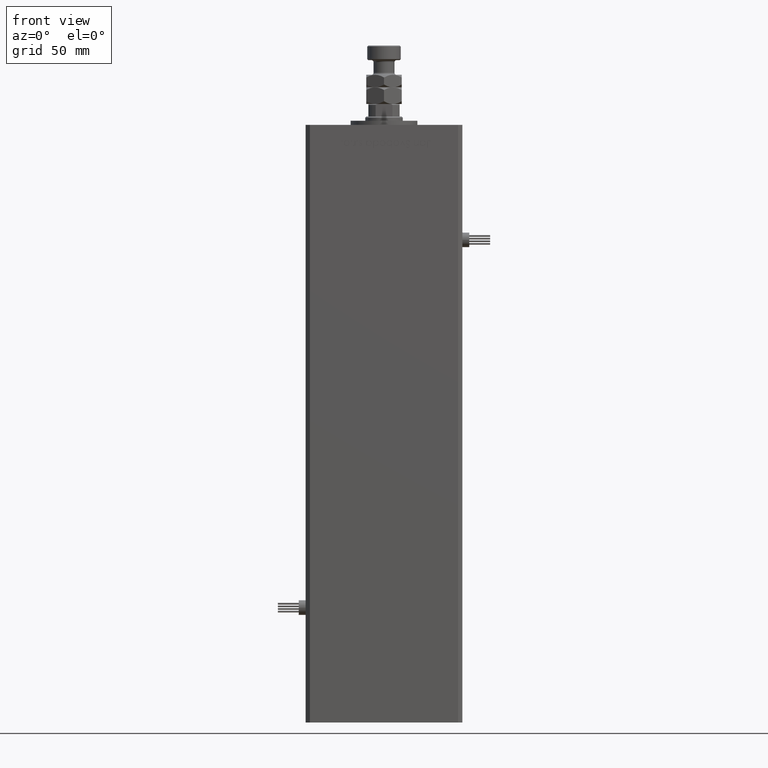
[diagram: clean part render]
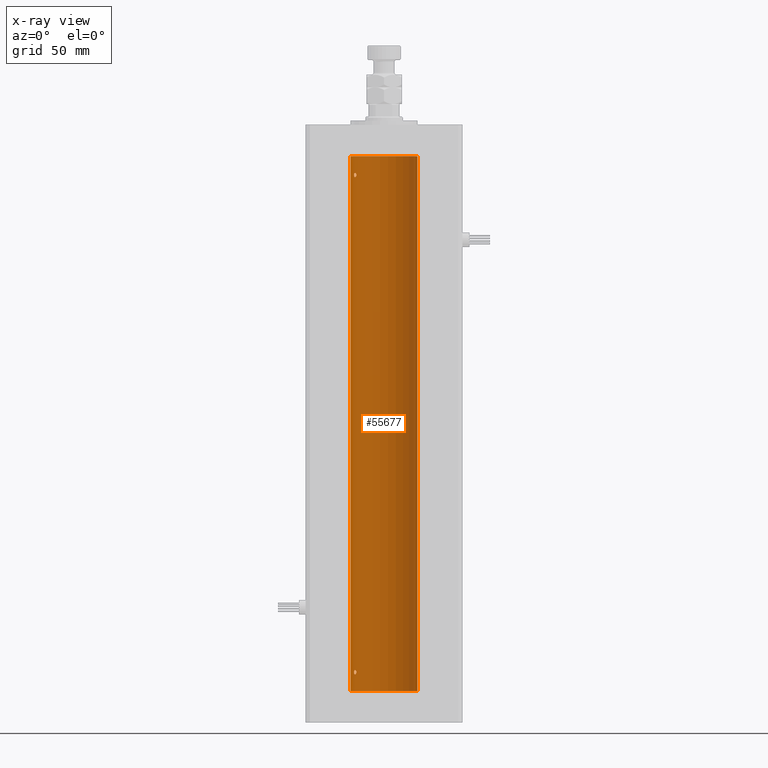
[diagram: x-ray — body ghosted, one internal face saturated and labeled with its STEP entity id]
A machine part, front view, then the same camera in x-ray: the body is ghosted and one INTERNAL B-rep face — a face not visible from any outside direction — is saturated and labeled: STEP entity #55677.
In plain terms, the highlighted cylindrical surface (edge-blend (fillet) strip) has radius 16 mm, axis along (-0, -0, -1).
Its self-contained STEP definition (entity closure, byte-faithful):
#684 = CARTESIAN_POINT ( 'NONE',  ( -13.25390108270225120, 8.962947079338391632, 246.7214357623584533 ) ) ;
#1239 = CARTESIAN_POINT ( 'NONE',  ( -13.98878315975728803, 7.767347947480344850, 247.9805461432612503 ) ) ;
#1321 = LINE ( 'NONE', #24031, #19580 ) ;
#1462 = VERTEX_POINT ( 'NONE', #28965 ) ;
#1539 = CARTESIAN_POINT ( 'NONE',  ( -14.17528142432533755, 7.421143801852455368, 246.1739430735387089 ) ) ;
#1542 = CARTESIAN_POINT ( 'NONE',  ( -13.22875655532295447, 8.999999999999996447, 9.140644760917734146 ) ) ;
#1825 = CARTESIAN_POINT ( 'NONE',  ( -13.22875655532295447, 8.999999999999996447, 9.000000000000000000 ) ) ;
#2109 = CARTESIAN_POINT ( 'NONE',  ( -13.37741691572085934, 8.778212469423014142, 9.640882860227099727 ) ) ;
#2208 = DIRECTION ( 'NONE',  ( 1.000000000000000000, 0.000000000000000000, 0.000000000000000000 ) ) ;
#2288 = CARTESIAN_POINT ( 'NONE',  ( -13.98699950016872151, 7.770591669637119558, 8.018476816648481886 ) ) ;
#2583 = CARTESIAN_POINT ( 'NONE',  ( -13.22875655532295092, 8.999999999999994671, 8.929565622361636201 ) ) ;
#2611 = ORIENTED_EDGE ( 'NONE', *, *, #33713, .F. ) ;
#2860 = CARTESIAN_POINT ( 'NONE',  ( -13.70481462797718031, 8.258098555717506173, 8.025997477291133109 ) ) ;
#2887 = DIRECTION ( 'NONE',  ( -0.000000000000000000, 0.000000000000000000, 1.000000000000000000 ) ) ;
#2949 = EDGE_CURVE ( 'NONE', #1462, #13479, #17241, .T. ) ;
#3139 = CARTESIAN_POINT ( 'NONE',  ( -13.49759407097374897, 8.592283911330223845, 8.184099152127670251 ) ) ;
#3193 = B_SPLINE_CURVE_WITH_KNOTS ( 'NONE', 3,
 ( #1825, #1542, #18506, #6444, #2109, #19061, #36891, #36609, #23961, #49817, #23391, #49536, #10466, #5586, #32300, #44955 ),
 .UNSPECIFIED., .F., .F.,
 ( 4, 2, 2, 2, 2, 2, 2, 4 ),
 ( 0.003377672193071777282, 0.003799209865779874882, 0.004220747538487972482, 0.005063822883904168549, 0.005485360556612268318, 0.005906898229320367219, 0.006328435902028466120, 0.006749973574736565889 ),
 .UNSPECIFIED. ) ;
#3392 = CARTESIAN_POINT ( 'NONE',  ( 16.00000000000000000, 1.959434878635765131E-15, 0.000000000000000000 ) ) ;
#4723 = CARTESIAN_POINT ( 'NONE',  ( -14.38749456993815912, 6.999999999999998224, 247.0000000000000000 ) ) ;
#5570 = CARTESIAN_POINT ( 'NONE',  ( -13.70792461986390798, 8.256614593260307444, 247.9966215356422765 ) ) ;
#5586 = CARTESIAN_POINT ( 'NONE',  ( -14.37227256866306213, 7.031482256185707769, 9.284457240976479397 ) ) ;
#5660 = VECTOR ( 'NONE', #46760, 1000.000000000000000 ) ;
#5873 = CARTESIAN_POINT ( 'NONE',  ( -13.91838063522421010, 7.892966471903945624, 245.9981483133087181 ) ) ;
#6149 = CARTESIAN_POINT ( 'NONE',  ( -13.56386909142669772, 8.487613976483636691, 246.1182242979961359 ) ) ;
#6441 = CARTESIAN_POINT ( 'NONE',  ( -13.32426099938365383, 8.858246960865844954, 246.4688748775329827 ) ) ;
#6444 = CARTESIAN_POINT ( 'NONE',  ( -13.32457971225032445, 8.857769707964649797, 9.531999662746555302 ) ) ;
#6912 = CARTESIAN_POINT ( 'NONE',  ( -14.38749456993815556, 6.999999999999997335, 8.857147409635411250 ) ) ;
#7033 = CARTESIAN_POINT ( 'NONE',  ( 0.000000000000000000, 0.000000000000000000, 256.0000000000000000 ) ) ;
#7201 = CARTESIAN_POINT ( 'NONE',  ( -14.37250282441143767, 7.031013007322936659, 8.716856996037261496 ) ) ;
#7480 = CARTESIAN_POINT ( 'NONE',  ( -14.38749456993815912, 6.999999999999997335, 9.000000000000000000 ) ) ;
#7644 = ORIENTED_EDGE ( 'NONE', *, *, #2949, .F. ) ;
#9164 = CARTESIAN_POINT ( 'NONE',  ( -14.38749456993815912, 6.999999999999997335, 9.000000000000000000 ) ) ;
#9608 = CARTESIAN_POINT ( 'NONE',  ( -13.55800260393081835, 8.498809056167509368, 247.9036434462101681 ) ) ;
#9887 = CARTESIAN_POINT ( 'NONE',  ( -13.22875655532295802, 8.999999999999996447, 247.0000000000000000 ) ) ;
#10466 = CARTESIAN_POINT ( 'NONE',  ( -14.31650799088418324, 7.144337649771912879, 9.535522627373689275 ) ) ;
#10623 = CARTESIAN_POINT ( 'NONE',  ( -14.38749456993815912, 6.999999999999998224, 247.0000000000000000 ) ) ;
#11218 = CARTESIAN_POINT ( 'NONE',  ( -14.27547848986622014, 7.226527013162185931, 8.352555730181528304 ) ) ;
#11684 = EDGE_LOOP ( 'NONE', ( #52638, #7644 ) ) ;
#11996 = LINE ( 'NONE', #41593, #5660 ) ;
#13479 = VERTEX_POINT ( 'NONE', #10623 ) ;
#13626 = CARTESIAN_POINT ( 'NONE',  ( -13.22875655532296157, 8.999999999999994671, 247.1406447609177519 ) ) ;
#14207 = CARTESIAN_POINT ( 'NONE',  ( -14.38749456993816267, 6.999999999999999112, 246.8571474096355018 ) ) ;
#14469 = VERTEX_POINT ( 'NONE', #45040 ) ;
#15024 = CARTESIAN_POINT ( 'NONE',  ( -13.22875655532295447, 8.999999999999996447, 9.000000000000000000 ) ) ;
#15514 = CARTESIAN_POINT ( 'NONE',  ( -13.91838063522420832, 7.892966471903941184, 7.998148313308679036 ) ) ;
#16644 = CARTESIAN_POINT ( 'NONE',  ( -13.23400746336172951, 8.992294519018086518, 8.857814559023015732 ) ) ;
#16767 = AXIS2_PLACEMENT_3D ( 'NONE', #45907, #24342, #2208 ) ;
#17241 = B_SPLINE_CURVE_WITH_KNOTS ( 'NONE', 3,
 ( #9887, #13626, #36035, #27692, #48676, #9608, #5570, #22806, #1239, #18490, #17917, #48393, #45217, #30862, #27123, #4723 ),
 .UNSPECIFIED., .F., .F.,
 ( 4, 2, 2, 2, 2, 2, 2, 4 ),
 ( 0.003377672193071779884, 0.003799209865779855366, 0.004220747538487930849, 0.005063822883904134722, 0.005485360556612237093, 0.005906898229320339463, 0.006328435902028442701, 0.006749973574736545072 ),
 .UNSPECIFIED. ) ;
#17307 = EDGE_LOOP ( 'NONE', ( #39999, #39115, #24769, #2611 ) ) ;
#17917 = CARTESIAN_POINT ( 'NONE',  ( -14.17576283486774891, 7.420212263225987925, 247.8252530343044100 ) ) ;
#18218 = CARTESIAN_POINT ( 'NONE',  ( -13.23400746336172240, 8.992294519018086518, 246.8578145590230406 ) ) ;
#18490 = CARTESIAN_POINT ( 'NONE',  ( -14.11618354197461400, 7.533333301880474231, 247.8932076519334373 ) ) ;
#18506 = CARTESIAN_POINT ( 'NONE',  ( -13.24976519864029179, 8.969293778684576779, 9.281535226335156707 ) ) ;
#19061 = CARTESIAN_POINT ( 'NONE',  ( -13.55800260393082546, 8.498809056167521803, 9.903643446210175227 ) ) ;
#19102 = VERTEX_POINT ( 'NONE', #9164 ) ;
#19339 = CARTESIAN_POINT ( 'NONE',  ( -13.98699950016872151, 7.770591669637114229, 246.0184768166483877 ) ) ;
#19580 = VECTOR ( 'NONE', #41273, 1000.000000000000000 ) ;
#19808 = CARTESIAN_POINT ( 'NONE',  ( -13.25390108270225298, 8.962947079338388079, 8.721435762358455079 ) ) ;
#20383 = CARTESIAN_POINT ( 'NONE',  ( -13.37674940693422521, 8.779234808442870630, 8.360244157126784259 ) ) ;
#20966 = CARTESIAN_POINT ( 'NONE',  ( 16.00000000000000000, 1.959434878635765131E-15, 256.0000000000000000 ) ) ;
#21540 = CARTESIAN_POINT ( 'NONE',  ( -16.00000000000000000, 0.000000000000000000, 0.000000000000000000 ) ) ;
#22665 = AXIS2_PLACEMENT_3D ( 'NONE', #7033, #50682, #46667 ) ;
#22806 = CARTESIAN_POINT ( 'NONE',  ( -13.91892506969882071, 7.891973478508848672, 248.0015521226323472 ) ) ;
#23391 = CARTESIAN_POINT ( 'NONE',  ( -14.17576283486774535, 7.420212263225985261, 9.825253034304354927 ) ) ;
#23961 = CARTESIAN_POINT ( 'NONE',  ( -13.98878315975729159, 7.767347947480346626, 9.980546143261280534 ) ) ;
#24031 = CARTESIAN_POINT ( 'NONE',  ( 16.00000000000000000, 1.959434878635765131E-15, 256.0000000000000000 ) ) ;
#24342 = DIRECTION ( 'NONE',  ( -0.000000000000000000, 0.000000000000000000, 1.000000000000000000 ) ) ;
#24421 = CARTESIAN_POINT ( 'NONE',  ( -13.26838749541400198, 8.941532915076040311, 8.656217793921369363 ) ) ;
#24769 = ORIENTED_EDGE ( 'NONE', *, *, #25081, .T. ) ;
#24878 = EDGE_CURVE ( 'NONE', #19102, #47886, #36199, .T. ) ;
#25081 = EDGE_CURVE ( 'NONE', #14469, #48201, #11996, .T. ) ;
#25263 = CARTESIAN_POINT ( 'NONE',  ( -13.32426099938365027, 8.858246960865852060, 8.468874877532968526 ) ) ;
#26212 = EDGE_LOOP ( 'NONE', ( #37631, #35581 ) ) ;
#27123 = CARTESIAN_POINT ( 'NONE',  ( -14.38749456993815734, 6.999999999999997335, 247.1426254415242454 ) ) ;
#27692 = CARTESIAN_POINT ( 'NONE',  ( -13.32457971225032622, 8.857769707964648020, 247.5319996627465002 ) ) ;
#27704 = CARTESIAN_POINT ( 'NONE',  ( -14.37250282441143945, 7.031013007322939323, 246.7168569960372793 ) ) ;
#28254 = VERTEX_POINT ( 'NONE', #20966 ) ;
#28273 = CARTESIAN_POINT ( 'NONE',  ( -14.27547848986622370, 7.226527013162184154, 246.3525557301815070 ) ) ;
#28898 = EDGE_CURVE ( 'NONE', #13479, #1462, #46931, .T. ) ;
#28965 = CARTESIAN_POINT ( 'NONE',  ( -13.22875655532295802, 8.999999999999996447, 247.0000000000000000 ) ) ;
#29147 = FACE_OUTER_BOUND ( 'NONE', #17307, .T. ) ;
#30862 = CARTESIAN_POINT ( 'NONE',  ( -14.37227256866306213, 7.031482256185711321, 247.2844572409765362 ) ) ;
#31722 = CARTESIAN_POINT ( 'NONE',  ( -14.31660136508398828, 7.144151923086063505, 246.4646217954444580 ) ) ;
#32300 = CARTESIAN_POINT ( 'NONE',  ( -14.38749456993816445, 6.999999999999997335, 9.142625441524202756 ) ) ;
#33054 = CARTESIAN_POINT ( 'NONE',  ( -13.77582987033441064, 8.139210687602712824, 8.002110545841816247 ) ) ;
#33172 = FACE_BOUND ( 'NONE', #11684, .T. ) ;
#33336 = CARTESIAN_POINT ( 'NONE',  ( -14.17528142432533755, 7.421143801852455368, 8.173943073538659121 ) ) ;
#33713 = EDGE_CURVE ( 'NONE', #43020, #48201, #42701, .T. ) ;
#35581 = ORIENTED_EDGE ( 'NONE', *, *, #43442, .F. ) ;
#36035 = CARTESIAN_POINT ( 'NONE',  ( -13.24976519864029179, 8.969293778684573226, 247.2815352263351372 ) ) ;
#36199 = B_SPLINE_CURVE_WITH_KNOTS ( 'NONE', 3,
 ( #7480, #6912, #7201, #55717, #11218, #33336, #42235, #2288, #15514, #33054, #2860, #50847, #3139, #20383, #25263, #24421, #19808, #16644, #2583, #42518 ),
 .UNSPECIFIED., .F., .F.,
 ( 4, 2, 2, 2, 2, 2, 2, 2, 2, 4 ),
 ( 0.000000000000000000, 0.0004222090241339719976, 0.0008444180482679439952, 0.001266627072401915830, 0.001688836096535887990, 0.002111045120669860151, 0.002533254144803831660, 0.002955463168937803604, 0.003166567681004790660, 0.003377672193071777282 ),
 .UNSPECIFIED. ) ;
#36606 = CARTESIAN_POINT ( 'NONE',  ( -13.70481462797717676, 8.258098555717509726, 246.0259974772911562 ) ) ;
#36609 = CARTESIAN_POINT ( 'NONE',  ( -13.91892506969882959, 7.891973478508852224, 10.00155212263243953 ) ) ;
#36888 = CARTESIAN_POINT ( 'NONE',  ( -13.49759407097375075, 8.592283911330223845, 246.1840991521276862 ) ) ;
#36891 = CARTESIAN_POINT ( 'NONE',  ( -13.70792461986390620, 8.256614593260307444, 9.996621535642271184 ) ) ;
#37176 = CARTESIAN_POINT ( 'NONE',  ( -13.22875655532295625, 8.999999999999994671, 246.9295656223615936 ) ) ;
#37631 = ORIENTED_EDGE ( 'NONE', *, *, #24878, .F. ) ;
#37676 = DIRECTION ( 'NONE',  ( 1.000000000000000000, 0.000000000000000000, 0.000000000000000000 ) ) ;
#37761 = CARTESIAN_POINT ( 'NONE',  ( -13.22875655532295802, 8.999999999999996447, 247.0000000000000000 ) ) ;
#38053 = CYLINDRICAL_SURFACE ( 'NONE', #22665, 16.00000000000000000 ) ;
#39115 = ORIENTED_EDGE ( 'NONE', *, *, #40574, .T. ) ;
#39999 = ORIENTED_EDGE ( 'NONE', *, *, #43182, .F. ) ;
#40072 = CARTESIAN_POINT ( 'NONE',  ( -13.26838749541400908, 8.941532915076043864, 246.6562177939213711 ) ) ;
#40574 = EDGE_CURVE ( 'NONE', #28254, #14469, #43410, .T. ) ;
#41273 = DIRECTION ( 'NONE',  ( -0.000000000000000000, -0.000000000000000000, -1.000000000000000000 ) ) ;
#41593 = CARTESIAN_POINT ( 'NONE',  ( -16.00000000000000000, 0.000000000000000000, 256.0000000000000000 ) ) ;
#42235 = CARTESIAN_POINT ( 'NONE',  ( -14.11621438951177332, 7.533308783217010252, 8.106571071839512754 ) ) ;
#42518 = CARTESIAN_POINT ( 'NONE',  ( -13.22875655532295447, 8.999999999999996447, 9.000000000000000000 ) ) ;
#42701 = CIRCLE ( 'NONE', #47288, 16.00000000000000000 ) ;
#43020 = VERTEX_POINT ( 'NONE', #3392 ) ;
#43182 = EDGE_CURVE ( 'NONE', #28254, #43020, #1321, .T. ) ;
#43410 = CIRCLE ( 'NONE', #16767, 16.00000000000000000 ) ;
#43442 = EDGE_CURVE ( 'NONE', #47886, #19102, #3193, .T. ) ;
#44955 = CARTESIAN_POINT ( 'NONE',  ( -14.38749456993815912, 6.999999999999997335, 9.000000000000000000 ) ) ;
#45040 = CARTESIAN_POINT ( 'NONE',  ( -16.00000000000000000, 0.000000000000000000, 256.0000000000000000 ) ) ;
#45217 = CARTESIAN_POINT ( 'NONE',  ( -14.31650799088418147, 7.144337649771908438, 247.5355226273736662 ) ) ;
#45227 = CARTESIAN_POINT ( 'NONE',  ( -14.11621438951177687, 7.533308783217008475, 246.1065710718394826 ) ) ;
#45511 = CARTESIAN_POINT ( 'NONE',  ( -13.77582987033440709, 8.139210687602719929, 246.0021105458419015 ) ) ;
#45806 = CARTESIAN_POINT ( 'NONE',  ( -13.37674940693422876, 8.779234808442867077, 246.3602441571267718 ) ) ;
#45907 = CARTESIAN_POINT ( 'NONE',  ( 0.000000000000000000, 0.000000000000000000, 256.0000000000000000 ) ) ;
#46667 = DIRECTION ( 'NONE',  ( -1.000000000000000000, 0.000000000000000000, 0.000000000000000000 ) ) ;
#46760 = DIRECTION ( 'NONE',  ( -0.000000000000000000, -0.000000000000000000, -1.000000000000000000 ) ) ;
#46931 = B_SPLINE_CURVE_WITH_KNOTS ( 'NONE', 3,
 ( #49814, #14207, #27704, #31722, #28273, #1539, #45227, #19339, #5873, #45511, #36606, #6149, #36888, #45806, #6441, #40072, #684, #18218, #37176, #37761 ),
 .UNSPECIFIED., .F., .F.,
 ( 4, 2, 2, 2, 2, 2, 2, 2, 2, 4 ),
 ( 0.000000000000000000, 0.0004222090241339633240, 0.0008444180482679266480, 0.001266627072401889809, 0.001688836096535853296, 0.002111045120669816783, 0.002533254144803779619, 0.002955463168937742888, 0.003166567681004761603, 0.003377672193071779884 ),
 .UNSPECIFIED. ) ;
#47288 = AXIS2_PLACEMENT_3D ( 'NONE', #55461, #2887, #37676 ) ;
#47886 = VERTEX_POINT ( 'NONE', #15024 ) ;
#48201 = VERTEX_POINT ( 'NONE', #21540 ) ;
#48393 = CARTESIAN_POINT ( 'NONE',  ( -14.27521483392928836, 7.227035590538638310, 247.6478598706881940 ) ) ;
#48676 = CARTESIAN_POINT ( 'NONE',  ( -13.37741691572086111, 8.778212469423007036, 247.6408828602271512 ) ) ;
#49536 = CARTESIAN_POINT ( 'NONE',  ( -14.27521483392929014, 7.227035590538633869, 9.647859870688195727 ) ) ;
#49814 = CARTESIAN_POINT ( 'NONE',  ( -14.38749456993815912, 6.999999999999998224, 247.0000000000000000 ) ) ;
#49817 = CARTESIAN_POINT ( 'NONE',  ( -14.11618354197461400, 7.533333301880478672, 9.893207651933416003 ) ) ;
#50682 = DIRECTION ( 'NONE',  ( -0.000000000000000000, -0.000000000000000000, -1.000000000000000000 ) ) ;
#50847 = CARTESIAN_POINT ( 'NONE',  ( -13.56386909142669950, 8.487613976483636691, 8.118224297996075478 ) ) ;
#52638 = ORIENTED_EDGE ( 'NONE', *, *, #28898, .F. ) ;
#55461 = CARTESIAN_POINT ( 'NONE',  ( 0.000000000000000000, 0.000000000000000000, 0.000000000000000000 ) ) ;
#55677 = ADVANCED_FACE ( 'NONE', ( #29147, #55833, #33172 ), #38053, .F. ) ;
#55717 = CARTESIAN_POINT ( 'NONE',  ( -14.31660136508399184, 7.144151923086058176, 8.464621795444474017 ) ) ;
#55833 = FACE_BOUND ( 'NONE', #26212, .T. ) ;